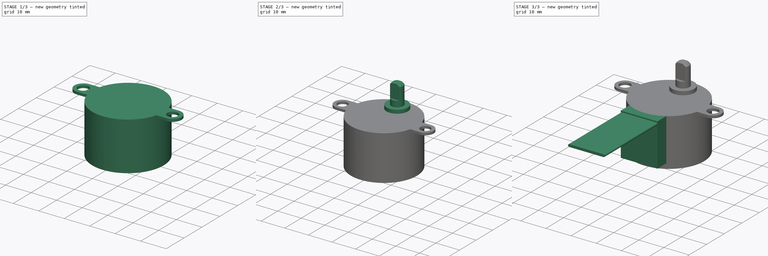
[diagram: build sequence overview — one tinted view per stage of 3, left to right]
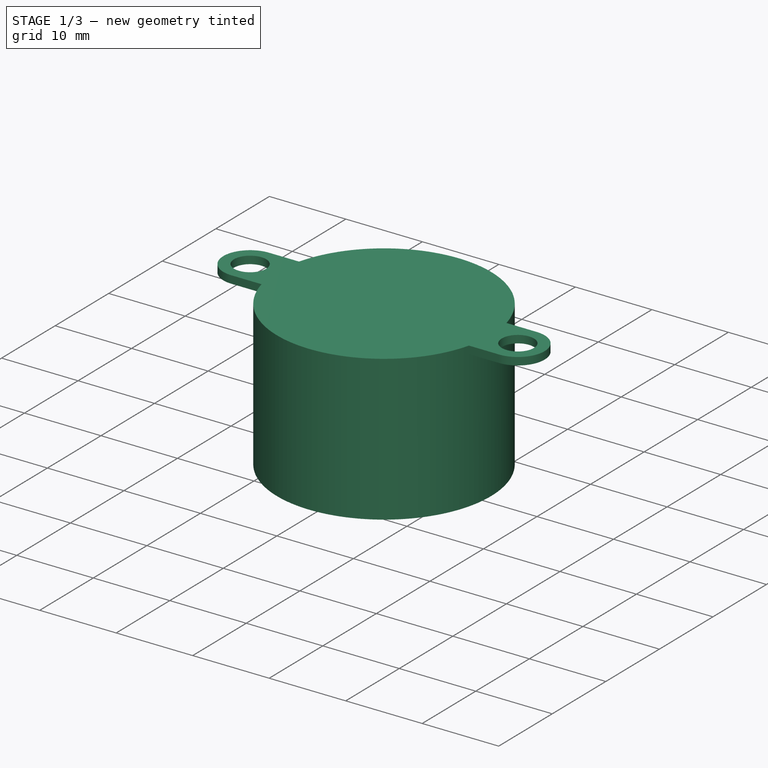
[diagram: stage 1 of 3 — iso view after this stage's code; geometry added in this stage tinted green]
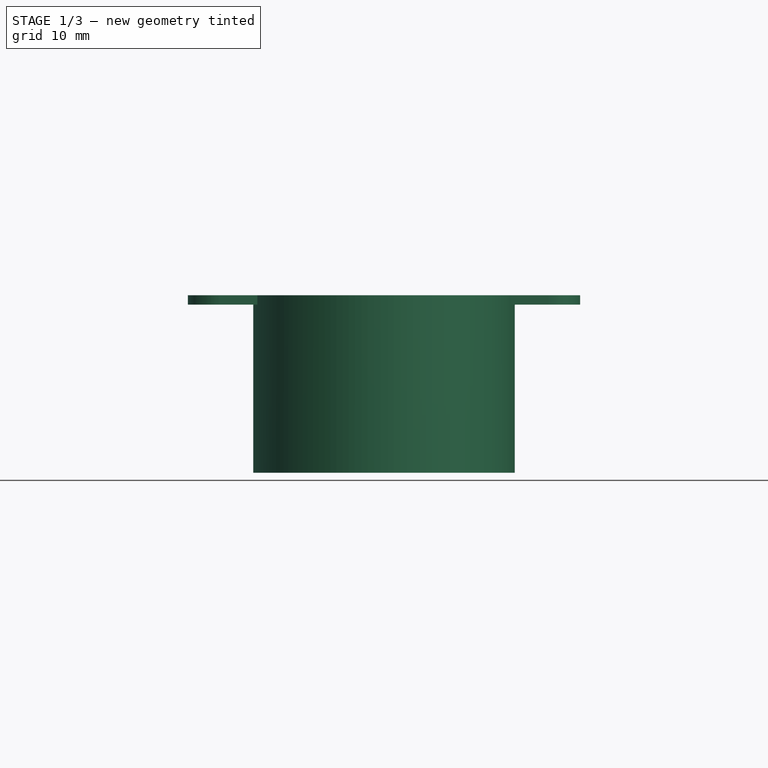
[diagram: stage 1 of 3 — front view after this stage's code; geometry added in this stage tinted green]
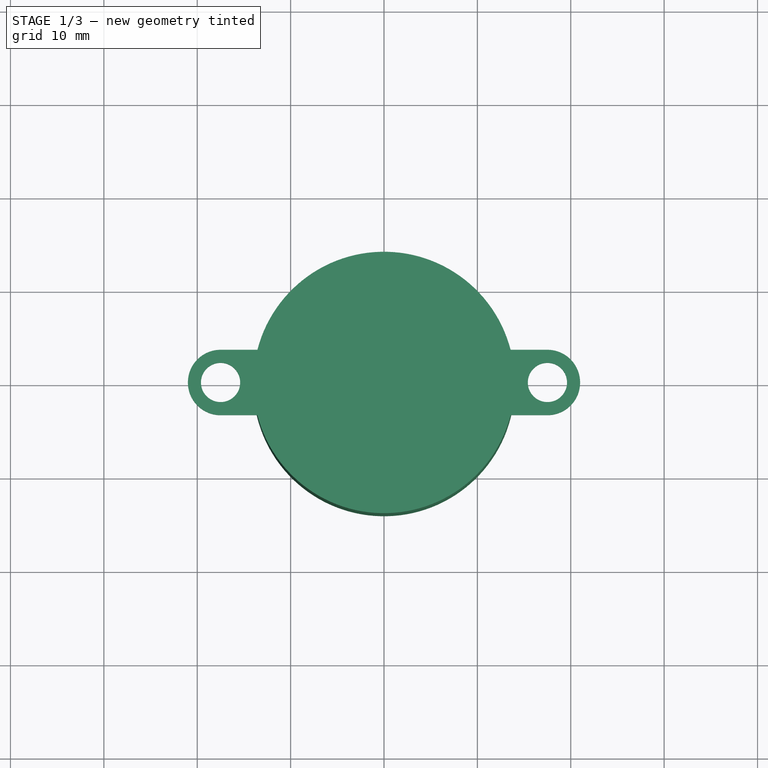
[diagram: stage 1 of 3 — top view after this stage's code; geometry added in this stage tinted green]
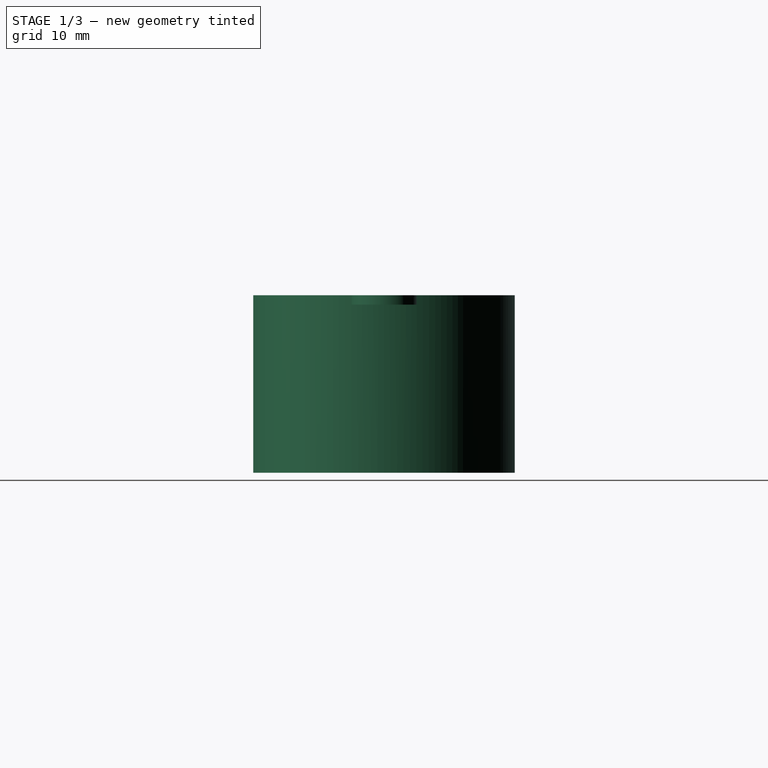
[diagram: stage 1 of 3 — right view after this stage's code; geometry added in this stage tinted green]
FCSTD DOCUMENT  (FreeCAD 0.19R23323 (Git))
Label: 28BYJ-48 stepper motor
License: All rights reserved
LicenseURL: http://en.wikipedia.org/wiki/All_rights_reserved
objects: Sketcher::SketchObject×6, PartDesign::Pad×4, PartDesign::Revolution×1, PartDesign::Pocket×1, PartDesign::Body×1
note: 19 computed .brp shape members not serialized (recipe doc carries the construction recipe); baked Part::Feature solids carry a one-line shape summary decoded from their .brp

FEATURE [Sketcher::SketchObject] Sketch
  MapMode = 5
  Support = -> [XY_Plane]
  sketch-geometry (10):
    g0: ArcOfCircle CenterX=0 CenterY=0 CenterZ=0 NormalX=0 NormalY=0 NormalZ=1 AngleXU=0 Radius=14 StartAngle=0.25268 EndAngle=2.88891
    g1: ArcOfCircle CenterX=-17.5 CenterY=0 CenterZ=0 NormalX=0 NormalY=0 NormalZ=1 AngleXU=0 Radius=3.5 StartAngle=1.5708 EndAngle=4.71239
    g2: ArcOfCircle CenterX=17.5 CenterY=0 CenterZ=0 NormalX=0 NormalY=0 NormalZ=1 AngleXU=0 Radius=3.5 StartAngle=4.71239 EndAngle=7.85398
    g3: LineSegment StartX=-17.5 StartY=-3.5 StartZ=0 EndX=-13.5554 EndY=-3.5 EndZ=0
    g4: LineSegment StartX=-17.5 StartY=3.5 StartZ=0 EndX=-13.5554 EndY=3.5 EndZ=0
    g5: Circle CenterX=-17.5 CenterY=0 CenterZ=0 NormalX=0 NormalY=0 NormalZ=1 AngleXU=0 Radius=2.1
    g6: Circle CenterX=17.5 CenterY=0 CenterZ=0 NormalX=0 NormalY=0 NormalZ=1 AngleXU=0 Radius=2.1
    g7: LineSegment StartX=13.5554 StartY=3.5 StartZ=0 EndX=17.5 EndY=3.5 EndZ=0
    g8: LineSegment StartX=13.5554 StartY=-3.5 StartZ=0 EndX=17.5 EndY=-3.5 EndZ=0
    g9: ArcOfCircle CenterX=0 CenterY=0 CenterZ=0 NormalX=0 NormalY=0 NormalZ=1 AngleXU=0 Radius=14 StartAngle=3.39427 EndAngle=6.03051
  constraints (24):
    c: Coincident(g0,g-1)
    c: Radius(g0) = 14
    c: Tangent(g1,g4) = 1.5708
    c: Tangent(g1,g3) = -1.5708
    c: PointOnObject(g1,g-1)
    c: Coincident(g5,g1)
    c: Coincident(g6,g2)
    c: Tangent(g4,g7)
    c: Coincident(g0,g7)
    c: Coincident(g9,g8)
    c: Equal(g0,g9)
    c: Coincident(g0,g4)
    c: Coincident(g9,g3)
    c: Coincident(g0,g9)
    c: DistanceY(g2,g2) = 7
    c: Symmetric(g2,g1,g-2)
    c: Tangent(g7,g2) = 1.5708
    c: Horizontal(g3)
    c: Horizontal(g8)
    c: Tangent(g8,g2) = -1.5708
    c: DistanceX(g1,g2) = 35
    c: Horizontal(g7)
    c: Equal(g6,g5)
    c: Radius(g6) = 2.1
FEATURE [PartDesign::Pad] Pad
  AllowMultiFace = false
  Direction = (1,1,1)
  Length = 1
  Length2 = 100
  Profile = -> Sketch
  Reversed = true
  Type = 0
FEATURE [Sketcher::SketchObject] Sketch001
  ExternalGeometry = -> [Pad]
  MapMode = 5
  Placement = pos=(0,0,-1) rot=(1,0,0;3.14159rad)
  Support = -> [Pad]
  sketch-geometry (1):
    g0: Circle CenterX=0 CenterY=0 CenterZ=0 NormalX=0 NormalY=0 NormalZ=1 AngleXU=0 Radius=14
  constraints (2):
    c: Coincident(g0,g-1)
    c: Equal(g0,g-3)
FEATURE [PartDesign::Pad] Pad001
  AllowMultiFace = false
  BaseFeature = -> Pad
  Direction = (1,1,1)
  Length = 18
  Length2 = 100
  Profile = -> Sketch001
  Type = 0
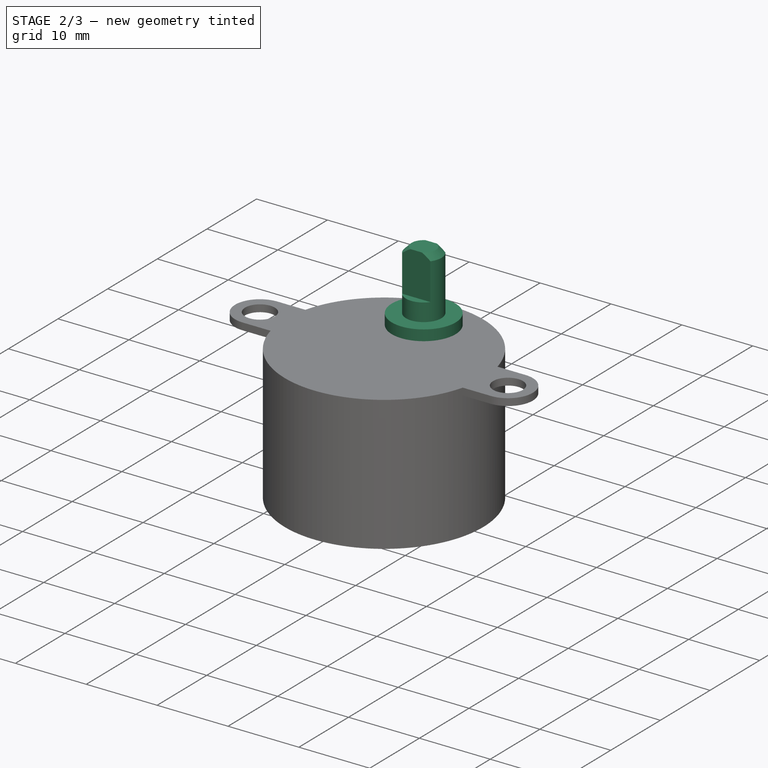
[diagram: stage 2 of 3 — iso view after this stage's code; geometry added in this stage tinted green]
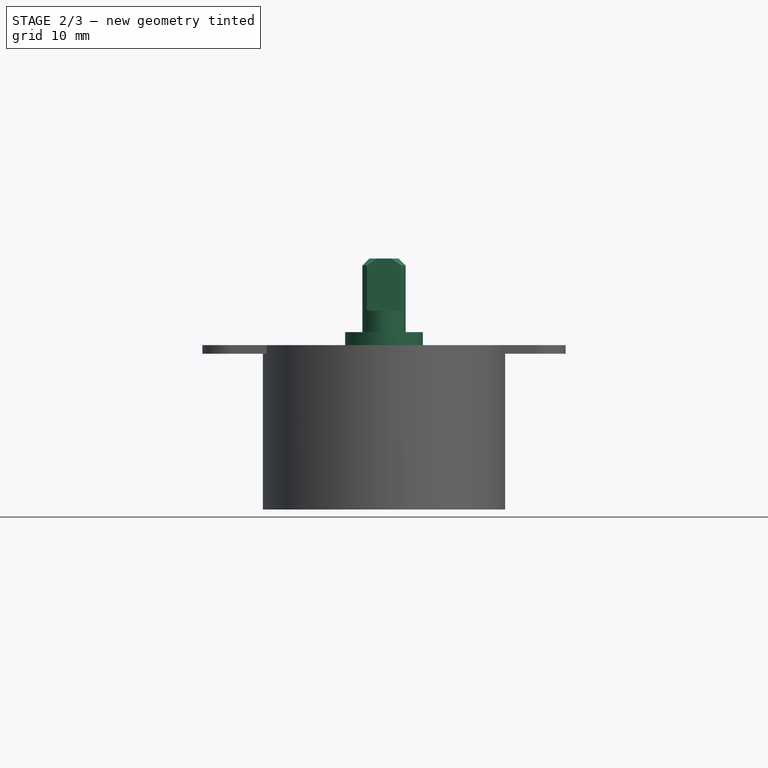
[diagram: stage 2 of 3 — front view after this stage's code; geometry added in this stage tinted green]
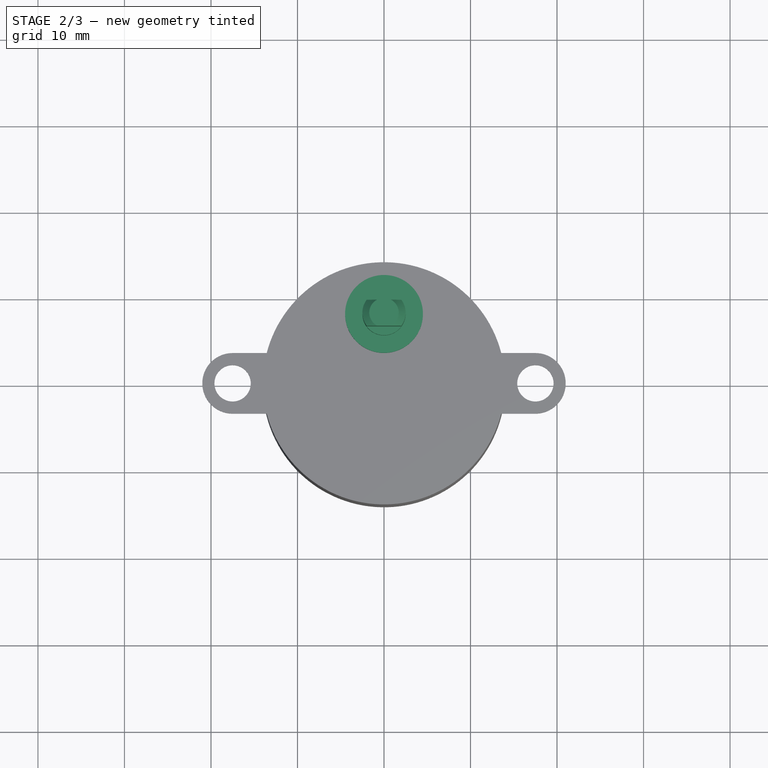
[diagram: stage 2 of 3 — top view after this stage's code; geometry added in this stage tinted green]
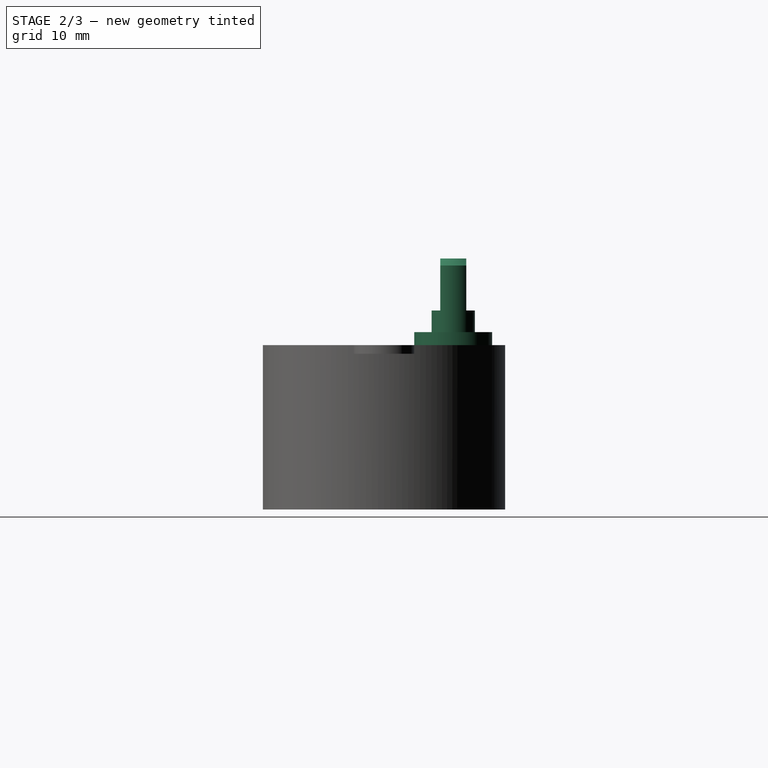
[diagram: stage 2 of 3 — right view after this stage's code; geometry added in this stage tinted green]
FEATURE [Sketcher::SketchObject] Sketch002
  AttachmentOffset = pos=(0,0,-8) rot=(0,0,1;0rad)
  MapMode = 5
  Placement = pos=(0,8,1.8e-15) rot=(1,0,0;1.5708rad)
  Support = -> [XZ_Plane]
  sketch-geometry (7):
    g0: LineSegment StartX=0 StartY=0 StartZ=0 EndX=4.5 EndY=0 EndZ=0
    g1: LineSegment StartX=4.5 StartY=0 StartZ=0 EndX=4.5 EndY=1.5 EndZ=0
    g2: LineSegment StartX=4.5 StartY=1.5 StartZ=0 EndX=2.5 EndY=1.5 EndZ=0
    g3: LineSegment StartX=2.5 StartY=1.5 StartZ=0 EndX=2.5 EndY=9.2 EndZ=0
    g4: LineSegment StartX=2.5 StartY=9.2 StartZ=0 EndX=1.7 EndY=10 EndZ=0
    g5: LineSegment StartX=1.7 StartY=10 StartZ=0 EndX=0 EndY=10 EndZ=0
    g6: LineSegment StartX=0 StartY=10 StartZ=0 EndX=0 EndY=0 EndZ=0
  constraints (21):
    c: PointOnObject(g0,g-2)
    c: Horizontal(g0)
    c: Coincident(g0,g1)
    c: Vertical(g1)
    c: Coincident(g1,g2)
    c: Horizontal(g2)
    c: Coincident(g2,g3)
    c: Vertical(g3)
    c: Coincident(g3,g4)
    c: Coincident(g4,g5)
    c: Horizontal(g5)
    c: Coincident(g5,g6)
    c: Coincident(g6,g0)
    c: Vertical(g6)
    c: PointOnObject(g0,g-1)
    c: DistanceY(g1,g1) = 1.5
    c: DistanceX(g5,g1) = 4.5
    c: DistanceX(g5,g3) = 2.5
    c: DistanceY(g0,g4) = 10
    c: Angle(g4,g3) = 2.35619
    c: DistanceY(g4,g4) = 0.8
FEATURE [PartDesign::Revolution] Revolution
  AllowMultiFace = false
  Angle = 360
  Axis = (0,2e-16,1)
  Base = (0,8,-1.8e-15)
  BaseFeature = -> Pad001
  Profile = -> Sketch002
  ReferenceAxis = -> Sketch002 [V_Axis]
  Reversed = true
FEATURE [Sketcher::SketchObject] Sketch003
  ExternalGeometry = -> [Revolution]
  MapMode = 5
  Placement = pos=(0,2.2e-15,10) rot=(0,0,1;0rad)
  Support = -> [Revolution]
  sketch-geometry (5):
    g0: ArcOfCircle CenterX=0 CenterY=8 CenterZ=0 NormalX=0 NormalY=0 NormalZ=1 AngleXU=0 Radius=3 StartAngle=0.523599 EndAngle=2.61799
    g1: LineSegment StartX=-2.59808 StartY=9.5 StartZ=0 EndX=2.59808 EndY=9.5 EndZ=0
    g2: LineSegment StartX=2.59808 StartY=6.5 StartZ=0 EndX=-2.59808 EndY=6.5 EndZ=0
    g3: ArcOfCircle CenterX=0 CenterY=8 CenterZ=0 NormalX=0 NormalY=0 NormalZ=1 AngleXU=0 Radius=3 StartAngle=3.66519 EndAngle=5.75959
    g4: LineSegment StartX=-2.59808 StartY=8 StartZ=0 EndX=2.59808 EndY=8 EndZ=0
  constraints (14):
    c: Coincident(g0,g-3)
    c: Horizontal(g1)
    c: Equal(g0,g3)
    c: Coincident(g0,g3)
    c: Coincident(g0,g1)
    c: Coincident(g2,g3)
    c: Coincident(g2,g3)
    c: Coincident(g0,g1)
    c: Symmetric(g2,g0,g4)
    c: Symmetric(g4,g4,g-2)
    c: Equal(g1,g2)
    c: DistanceY(g2,g0) = 3
    c: Radius(g0) = 3
    c: Equal(g1,g4)
FEATURE [PartDesign::Pocket] Pocket
  AllowMultiFace = false
  BaseFeature = -> Revolution
  Length = 6
  Length2 = 100
  Profile = -> Sketch003
  Type = 0
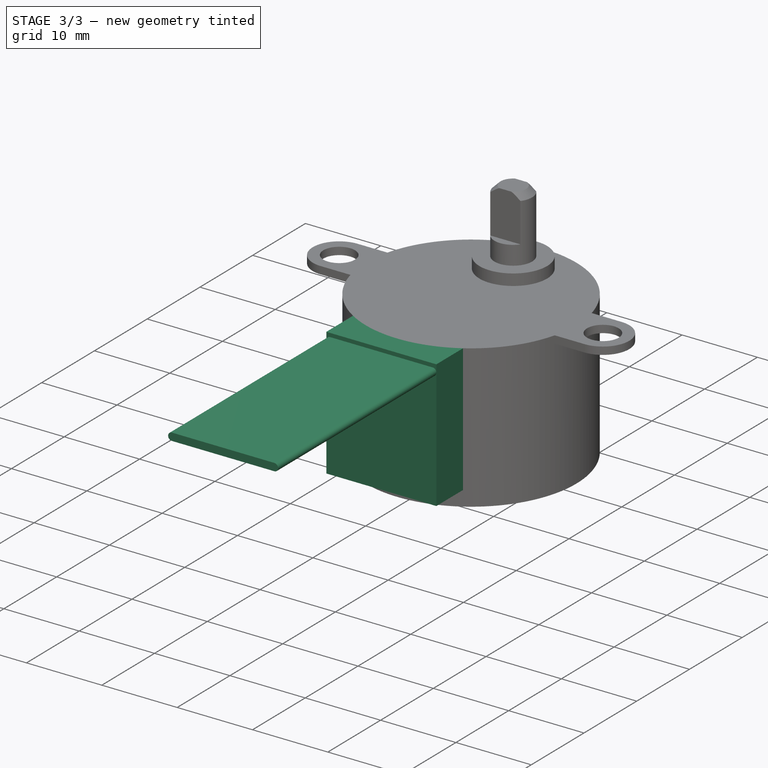
[diagram: stage 3 of 3 — iso view after this stage's code; geometry added in this stage tinted green]
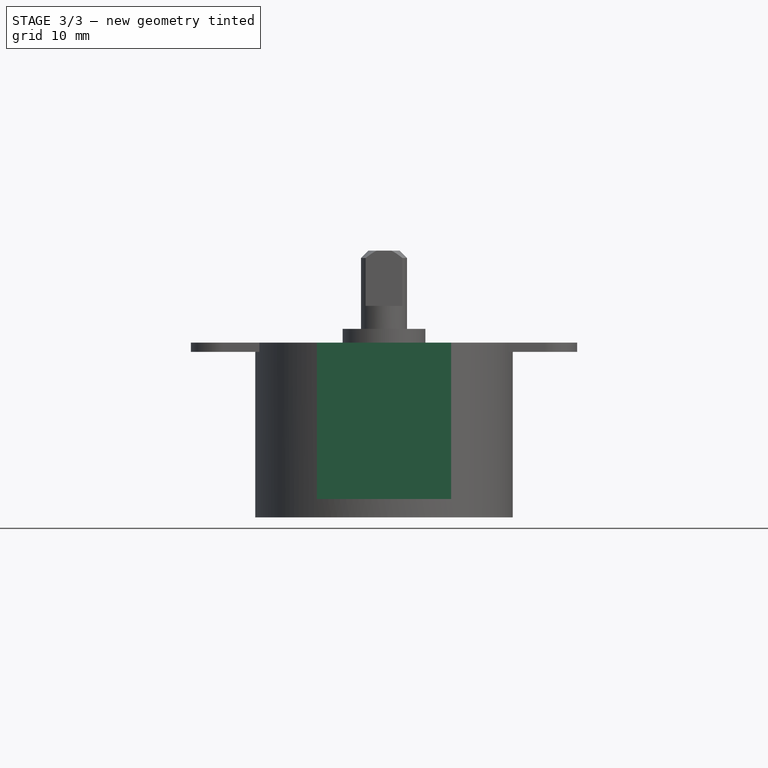
[diagram: stage 3 of 3 — front view after this stage's code; geometry added in this stage tinted green]
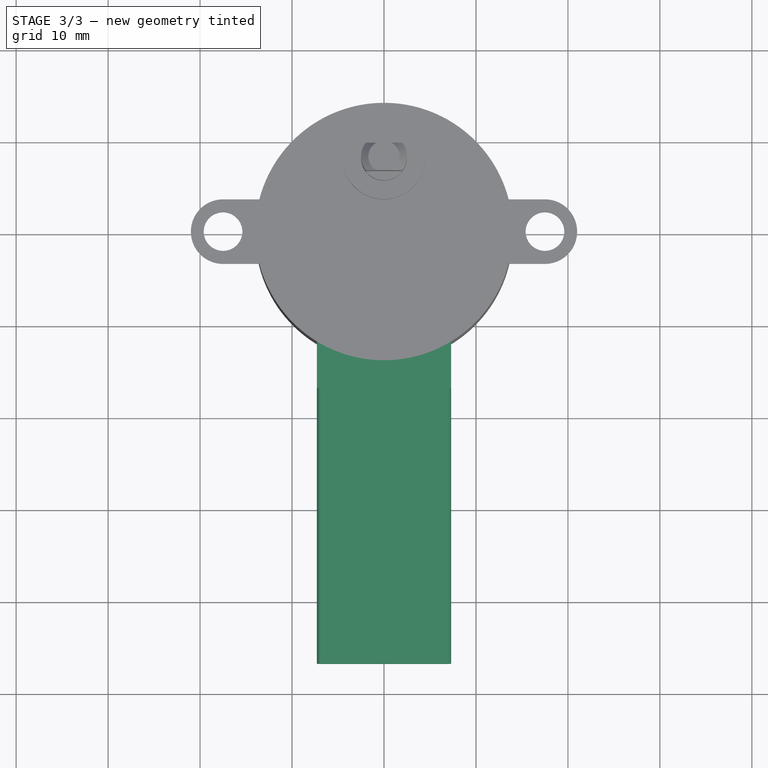
[diagram: stage 3 of 3 — top view after this stage's code; geometry added in this stage tinted green]
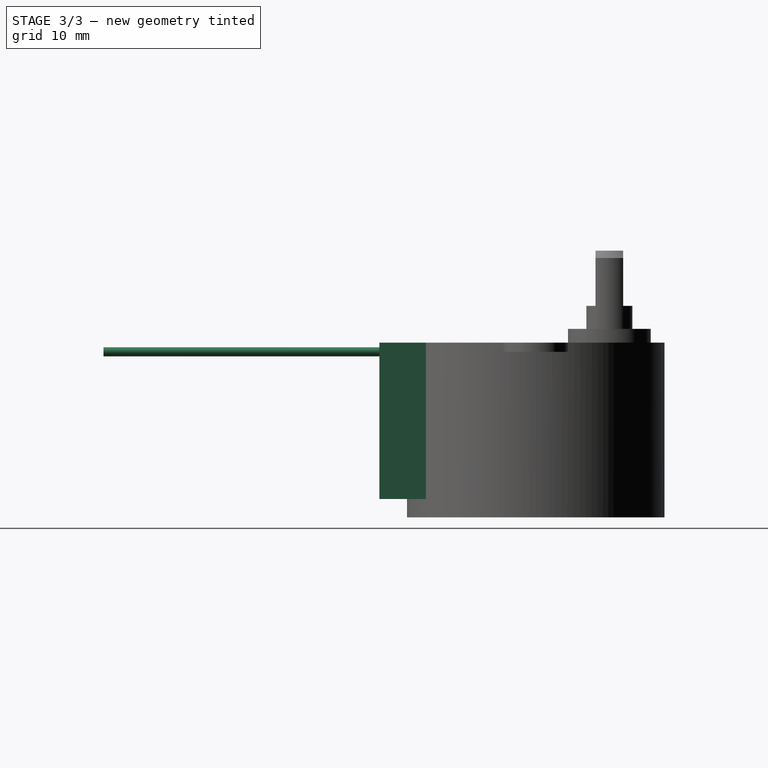
[diagram: stage 3 of 3 — right view after this stage's code; geometry added in this stage tinted green]
FEATURE [Sketcher::SketchObject] Sketch004
  ExternalGeometry = -> [Pocket]
  MapMode = 5
  Support = -> [XY_Plane]
  sketch-geometry (4):
    g0: ArcOfCircle CenterX=0 CenterY=0 CenterZ=0 NormalX=0 NormalY=0 NormalZ=1 AngleXU=0 Radius=14 StartAngle=4.16386 EndAngle=5.26091
    g1: LineSegment StartX=7.3 StartY=-11.9461 StartZ=0 EndX=7.3 EndY=-17 EndZ=0
    g2: LineSegment StartX=7.3 StartY=-17 StartZ=0 EndX=-7.3 EndY=-17 EndZ=0
    g3: LineSegment StartX=-7.3 StartY=-17 StartZ=0 EndX=-7.3 EndY=-11.9461 EndZ=0
  constraints (11):
    c: Coincident(g0,g-1)
    c: Coincident(g1,g2)
    c: Coincident(g2,g3)
    c: Vertical(g1)
    c: Vertical(g3)
    c: Coincident(g0,g1)
    c: Symmetric(g1,g2,g-2)
    c: Coincident(g0,g3)
    c: Equal(g-3,g0)
    c: DistanceX(g2,g2) = 14.6
    c: DistanceY(g1,g0) = 17
FEATURE [PartDesign::Pad] Pad002
  AllowMultiFace = false
  BaseFeature = -> Pocket
  Direction = (1,1,1)
  Length = 17
  Length2 = 100
  Profile = -> Sketch004
  Reversed = true
  Type = 0
FEATURE [Sketcher::SketchObject] Sketch005
  MapMode = 5
  Placement = pos=(0,-17,0) rot=(1,0,0;1.5708rad)
  Support = -> [Pad002]
  sketch-geometry (7):
    g0: ArcOfCircle CenterX=-6.8 CenterY=-1 CenterZ=0 NormalX=0 NormalY=0 NormalZ=1 AngleXU=0 Radius=0.5 StartAngle=1.5708 EndAngle=4.71239
    g1: ArcOfCircle CenterX=6.8 CenterY=-1 CenterZ=0 NormalX=0 NormalY=0 NormalZ=1 AngleXU=0 Radius=0.5 StartAngle=4.71239 EndAngle=7.85398
    g2: LineSegment StartX=-6.8 StartY=-1.5 StartZ=0 EndX=6.8 EndY=-1.5 EndZ=0
    g3: LineSegment StartX=-6.8 StartY=-0.5 StartZ=0 EndX=6.8 EndY=-0.5 EndZ=0
    g4: GeomPoint X=-7.3 Y=-1 Z=0
    g5: GeomPoint X=7.3 Y=-1 Z=0
    g6: LineSegment StartX=-7.3 StartY=-1 StartZ=0 EndX=7.3 EndY=-1 EndZ=0
  constraints (15):
    c: Tangent(g0,g3) = 1.5708
    c: Tangent(g0,g2) = -1.5708
    c: Tangent(g2,g1) = -1.5708
    c: Tangent(g3,g1) = 1.5708
    c: Horizontal(g2)
    c: PointOnObject(g4,g0)
    c: PointOnObject(g5,g1)
    c: Coincident(g6,g4)
    c: Coincident(g6,g5)
    c: Horizontal(g6)
    c: PointOnObject(g1,g6)
    c: DistanceX(g6,g6) = 14.6
    c: DistanceY(g1,g1) = 1
    c: Symmetric(g0,g1,g-2)
    c: DistanceY(g1,g-1) = 1
FEATURE [PartDesign::Pad] Pad003
  AllowMultiFace = false
  BaseFeature = -> Pad002
  Direction = (1,1,1)
  Length = 30
  Length2 = 100
  Profile = -> Sketch005
  Type = 0
FEATURE [PartDesign::Body] Body  label="28BYJ-48"
  Group = -> [Sketch,Pad,Sketch001,Pad001,Sketch002,Revolution,Sketch003,Pocket,Sketch004,Pad002,Sketch005,Pad003]
  Origin = -> Origin
  Tip = -> Pad003
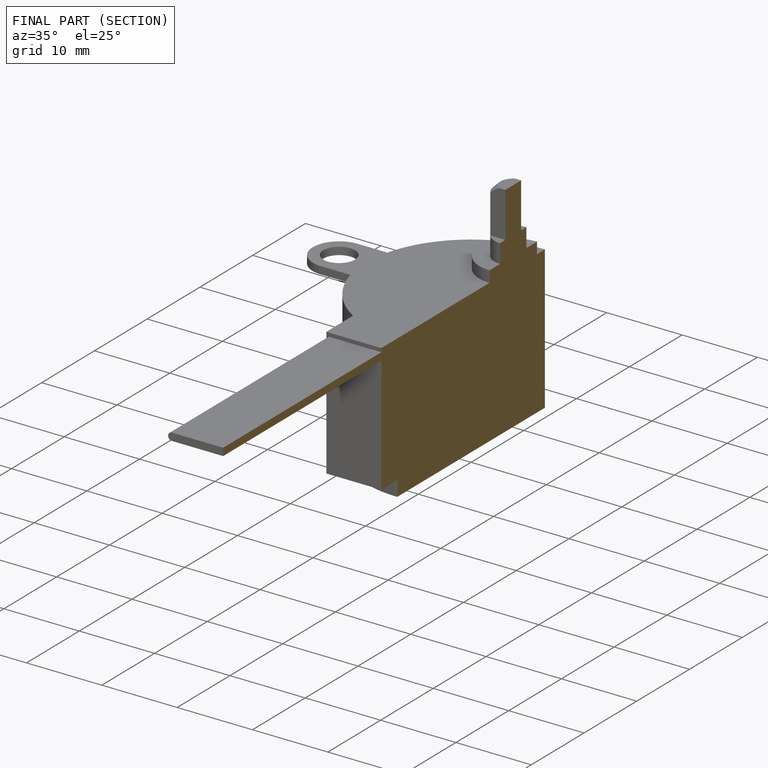
[diagram: finished part — half-section view (interior)]
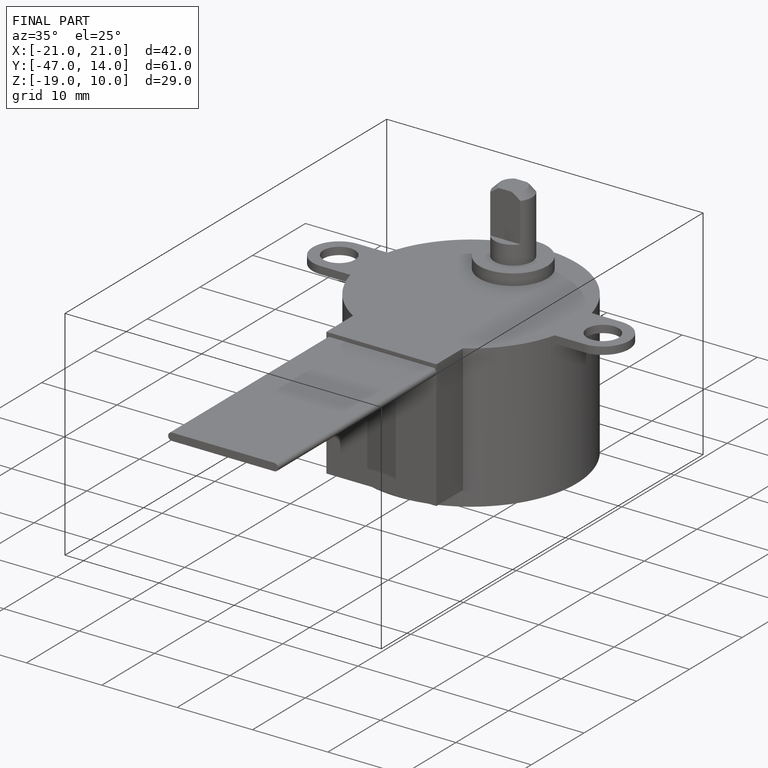
[diagram: finished part — iso view with bounding-box wireframe]
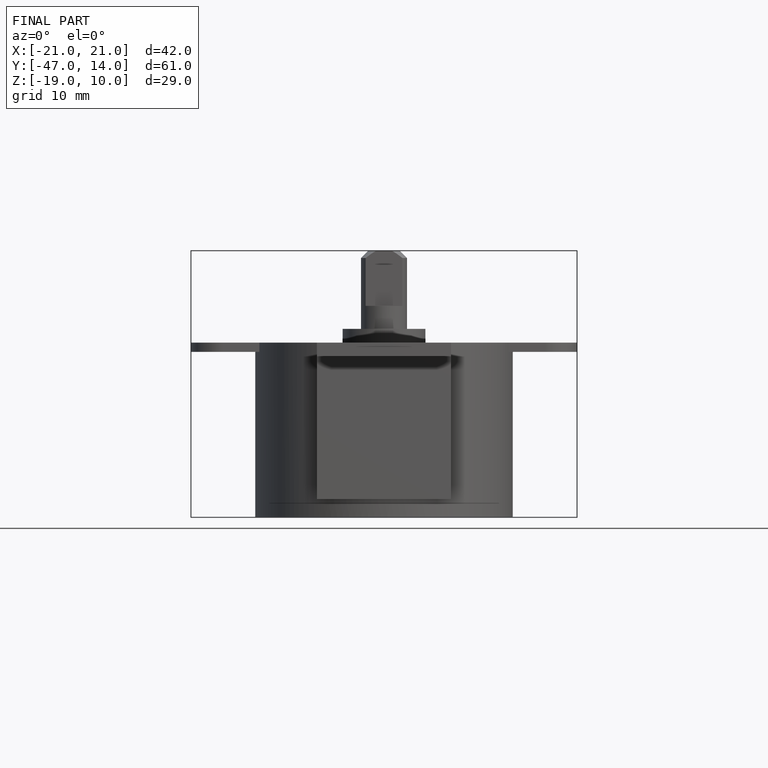
[diagram: finished part — front view with bounding-box wireframe]
